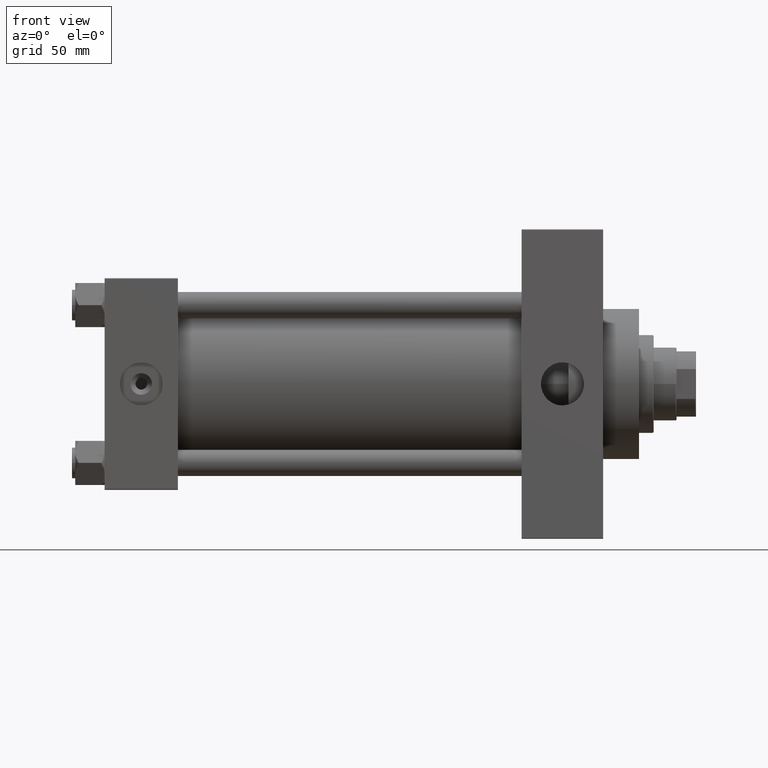
[diagram: clean part render]
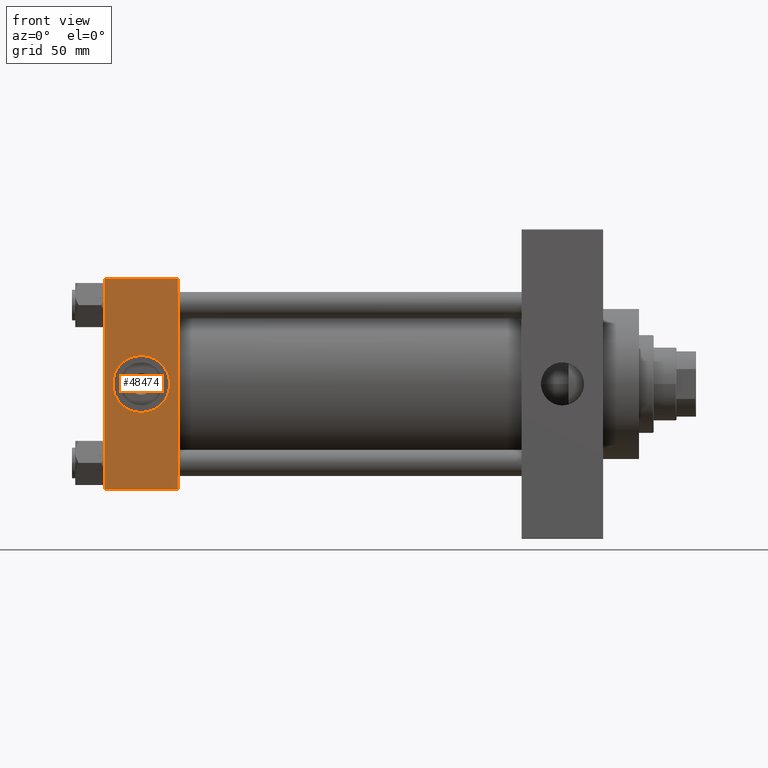
[diagram: same view with one face highlighted and labeled with its STEP entity id]
A machine part, front view. The second image highlights one B-rep face of the part: STEP entity #48474.
In plain terms, the highlighted planar face has unit normal (0, 1, 0).
Its self-contained STEP definition (entity closure, byte-faithful):
#1246 = DIRECTION ( 'NONE',  ( 0.000000000000000000, -0.000000000000000000, 1.000000000000000000 ) ) ;
#1573 = CARTESIAN_POINT ( 'NONE',  ( 0.000000000000000000, -65.00000000000000000, 64.50000000000000000 ) ) ;
#1734 = DIRECTION ( 'NONE',  ( 0.000000000000000000, 0.000000000000000000, -1.000000000000000000 ) ) ;
#1897 = AXIS2_PLACEMENT_3D ( 'NONE', #25315, #25559, #44251 ) ;
#2076 = ORIENTED_EDGE ( 'NONE', *, *, #19583, .T. ) ;
#3777 = CARTESIAN_POINT ( 'NONE',  ( 45.00000000000000000, -65.00000000000000000, 64.50000000000000000 ) ) ;
#4398 = EDGE_CURVE ( 'NONE', #38851, #47471, #43935, .T. ) ;
#5048 = CIRCLE ( 'NONE', #34158, 17.50000000000000000 ) ;
#5597 = VERTEX_POINT ( 'NONE', #19194 ) ;
#6170 = EDGE_LOOP ( 'NONE', ( #39823, #14267, #40056, #2076 ) ) ;
#6605 = LINE ( 'NONE', #44287, #48311 ) ;
#8308 = AXIS2_PLACEMENT_3D ( 'NONE', #8829, #31867, #1246 ) ;
#8475 = EDGE_CURVE ( 'NONE', #47471, #5597, #28838, .T. ) ;
#8829 = CARTESIAN_POINT ( 'NONE',  ( 45.00000000000000000, -65.00000000000000000, 65.00000000000000000 ) ) ;
#9593 = CARTESIAN_POINT ( 'NONE',  ( 45.00000000000000000, -65.00000000000000000, -64.49999999999991473 ) ) ;
#10283 = EDGE_CURVE ( 'NONE', #27533, #5597, #6605, .T. ) ;
#10996 = ORIENTED_EDGE ( 'NONE', *, *, #25208, .F. ) ;
#11525 = VERTEX_POINT ( 'NONE', #26878 ) ;
#12095 = CARTESIAN_POINT ( 'NONE',  ( 22.50000000000000000, -65.00000000000000000, -17.50000000000000000 ) ) ;
#12182 = DIRECTION ( 'NONE',  ( 0.000000000000000000, -1.000000000000000000, -8.673617379884036705E-17 ) ) ;
#12436 = CARTESIAN_POINT ( 'NONE',  ( 0.000000000000000000, -65.00000000000000000, -64.49999999999991473 ) ) ;
#14267 = ORIENTED_EDGE ( 'NONE', *, *, #8475, .T. ) ;
#15190 = FACE_OUTER_BOUND ( 'NONE', #6170, .T. ) ;
#15241 = CARTESIAN_POINT ( 'NONE',  ( 22.50000000000000000, -65.00000000000000000, 0.000000000000000000 ) ) ;
#15683 = LINE ( 'NONE', #3777, #19481 ) ;
#16652 = CARTESIAN_POINT ( 'NONE',  ( 0.000000000000000000, -65.00000000000000000, 65.00000000000000000 ) ) ;
#17263 = CIRCLE ( 'NONE', #1897, 17.50000000000000000 ) ;
#19194 = CARTESIAN_POINT ( 'NONE',  ( 45.00000000000000000, -65.00000000000000000, -64.49999999999991473 ) ) ;
#19481 = VECTOR ( 'NONE', #31109, 1000.000000000000000 ) ;
#19583 = EDGE_CURVE ( 'NONE', #27533, #38851, #15683, .T. ) ;
#21531 = VERTEX_POINT ( 'NONE', #12095 ) ;
#22470 = VECTOR ( 'NONE', #25036, 1000.000000000000000 ) ;
#25036 = DIRECTION ( 'NONE',  ( 1.000000000000000000, 0.000000000000000000, 0.000000000000000000 ) ) ;
#25208 = EDGE_CURVE ( 'NONE', #21531, #11525, #17263, .T. ) ;
#25315 = CARTESIAN_POINT ( 'NONE',  ( 22.50000000000000000, -65.00000000000000000, 0.000000000000000000 ) ) ;
#25559 = DIRECTION ( 'NONE',  ( 0.000000000000000000, -1.000000000000000000, -8.673617379884036705E-17 ) ) ;
#26156 = EDGE_CURVE ( 'NONE', #11525, #21531, #5048, .T. ) ;
#26878 = CARTESIAN_POINT ( 'NONE',  ( 22.50000000000000355, -65.00000000000000000, 17.50000000000000000 ) ) ;
#27533 = VERTEX_POINT ( 'NONE', #48178 ) ;
#28838 = LINE ( 'NONE', #9593, #22470 ) ;
#30622 = PLANE ( 'NONE',  #8308 ) ;
#31109 = DIRECTION ( 'NONE',  ( -1.000000000000000000, 0.000000000000000000, 0.000000000000000000 ) ) ;
#31867 = DIRECTION ( 'NONE',  ( -0.000000000000000000, 1.000000000000000000, 0.000000000000000000 ) ) ;
#32272 = EDGE_LOOP ( 'NONE', ( #10996, #44393 ) ) ;
#34158 = AXIS2_PLACEMENT_3D ( 'NONE', #15241, #12182, #1734 ) ;
#35611 = DIRECTION ( 'NONE',  ( 0.000000000000000000, 0.000000000000000000, -1.000000000000000000 ) ) ;
#37283 = VECTOR ( 'NONE', #35611, 1000.000000000000000 ) ;
#37731 = DIRECTION ( 'NONE',  ( 0.000000000000000000, 0.000000000000000000, -1.000000000000000000 ) ) ;
#38851 = VERTEX_POINT ( 'NONE', #1573 ) ;
#39823 = ORIENTED_EDGE ( 'NONE', *, *, #4398, .T. ) ;
#40056 = ORIENTED_EDGE ( 'NONE', *, *, #10283, .F. ) ;
#43935 = LINE ( 'NONE', #16652, #37283 ) ;
#44251 = DIRECTION ( 'NONE',  ( 0.000000000000000000, 0.000000000000000000, -1.000000000000000000 ) ) ;
#44287 = CARTESIAN_POINT ( 'NONE',  ( 45.00000000000000000, -65.00000000000000000, 65.00000000000000000 ) ) ;
#44393 = ORIENTED_EDGE ( 'NONE', *, *, #26156, .F. ) ;
#45767 = FACE_BOUND ( 'NONE', #32272, .T. ) ;
#47471 = VERTEX_POINT ( 'NONE', #12436 ) ;
#48178 = CARTESIAN_POINT ( 'NONE',  ( 45.00000000000000000, -65.00000000000000000, 64.50000000000000000 ) ) ;
#48311 = VECTOR ( 'NONE', #37731, 1000.000000000000000 ) ;
#48474 = ADVANCED_FACE ( 'NONE', ( #45767, #15190 ), #30622, .F. ) ;